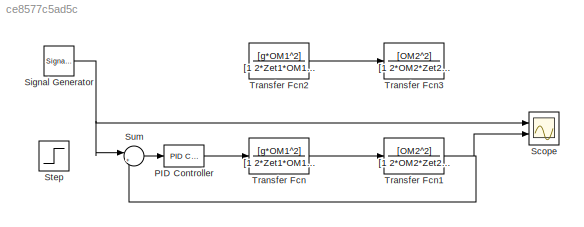
MODEL slx_ce8577c5ad5c
KIND model
CONFIG AbsTol = 1e-9
CONFIG FixedStep = 0.0000001
CONFIG MaxStep = auto
CONFIG MinStep = auto
CONFIG RelTol = 1e-9
CONFIG SampleTimeConstraint = Unconstrained
CONFIG Solver = ode113
CONFIG SolverMode = Auto
CONFIG SolverName = ode113
CONFIG StartTime = 0.0
CONFIG StopTime = 10.0
BLOCK [Reference] PID Controller  REF=simulink/Continuous/PID Controller
  Ports = [1, 1]
  SourceBlock = simulink/Continuous/PID Controller
  SourceType = PID 1dof
BLOCK [Scope] Scope
  NumInputPorts = 2
  Ports = [2]
  ScopeSpecificationString = Simulink.scopes.TimeScopeBlockCfg('CurrentConfiguration', extmgr.ConfigurationSet(extmgr.Configuration('Core','General UI',true),extmgr.Configuration('Core','Source UI',true),extmgr.Configuration('Sources','WiredSimulink',true),extmgr.Configuration('Visuals','Time Domain',true,'SerializedDisplays',{struct('MinYLimReal','-0.07871','MaxYLimReal','0.06261','YLabelReal','','MinYLimMag','0.00000','MaxY...<+1428ch>
BLOCK [SignalGenerator] Signal Generator
  Frequency = 3
  Ports = [0, 1]
  Units = rad/sec
  WaveForm = square
BLOCK [Step] Step
  SampleTime = 0
  Time = 0
BLOCK [Sum] Sum
  IconShape = round
  InputSameDT = off
  Inputs = |+-
  OutDataTypeStr = Inherit: Inherit via internal rule
  Ports = [2, 1]
  SaturateOnIntegerOverflow = off
BLOCK [TransferFcn] Transfer Fcn
  AbsoluteTolerance = 10^-12
  Denominator = [1 2*Zet1*OM1 OM1^2]
  Numerator = [g*OM1^2]
BLOCK [TransferFcn] Transfer Fcn1
  AbsoluteTolerance = 10^-12
  Denominator = [1 2*OM2*Zet2 OM2^2]
  Numerator = [OM2^2]
BLOCK [TransferFcn] Transfer Fcn2
  AbsoluteTolerance = 10^-12
  Denominator = [1 2*Zet1*OM1 OM1^2]
  Numerator = [g*OM1^2]
BLOCK [TransferFcn] Transfer Fcn3
  AbsoluteTolerance = 10^-12
  Denominator = [1 2*OM2*Zet2 OM2^2]
  Numerator = [OM2^2]
LINE PID Controller:1 -> Transfer Fcn:1
NET Signal Generator:1 -> Scope:1, Sum:1
LINE Sum:1 -> PID Controller:1
NET Transfer Fcn1:1 -> Scope:2, Sum:2
LINE Transfer Fcn2:1 -> Transfer Fcn3:1
LINE Transfer Fcn:1 -> Transfer Fcn1:1
note: NET lines group one-source signal fan-out (src -> all destinations, sorted); 1:1 wires keep LINE
